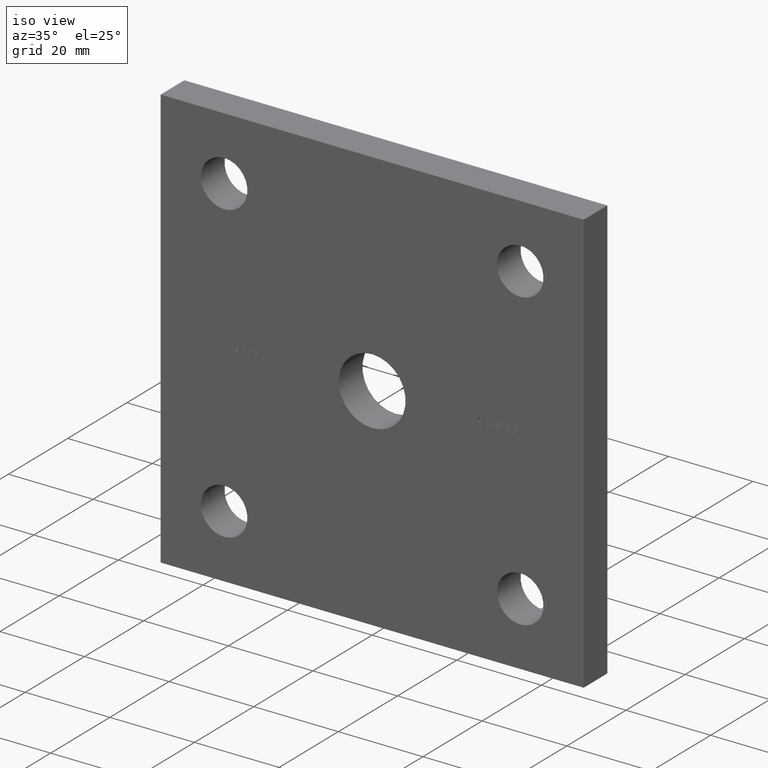
[diagram: clean part render]
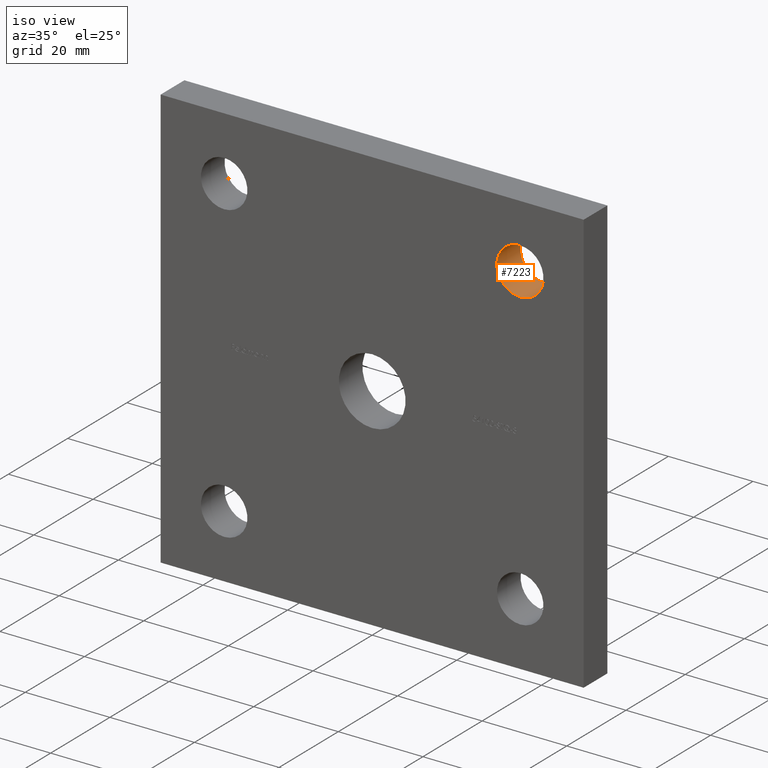
[diagram: same view with one face highlighted and labeled with its STEP entity id]
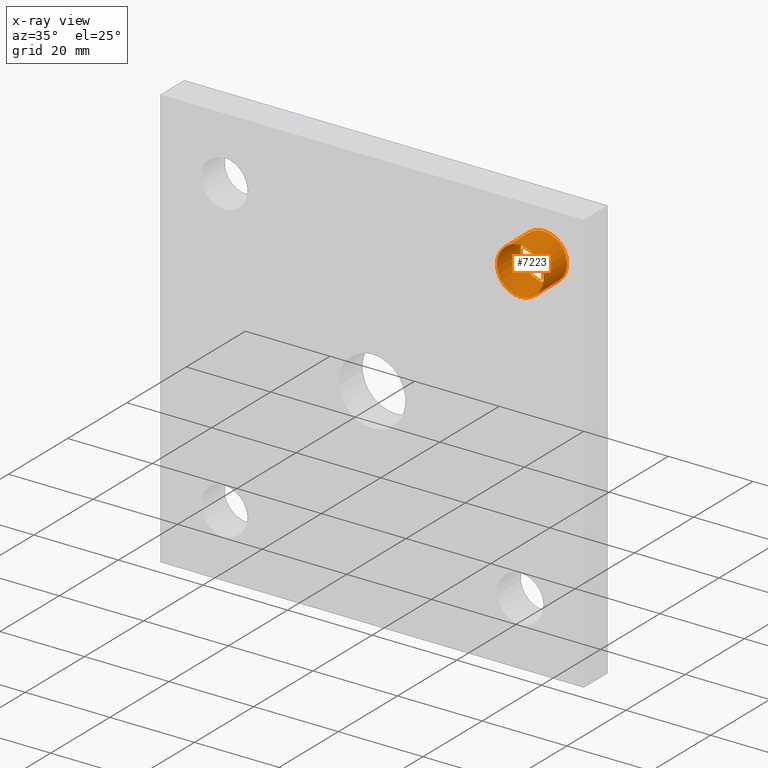
[diagram: x-ray of the same camera — body ghosted, the highlighted face saturated]
A machine part, iso view. The second image highlights one B-rep face of the part: STEP entity #7223.
The next image is the same camera in x-ray: the body ghosted, the highlighted face saturated — about 0% of this face is hidden behind the body in this view.
In plain terms, the highlighted cylindrical surface (bore or boss wall) has radius 5.5 mm, axis along (-0, 1, -0).
Its self-contained STEP definition (entity closure, byte-faithful):
#1149 = CYLINDRICAL_SURFACE ( 'NONE', #8152, 5.499999999999998224 ) ;
#1209 = AXIS2_PLACEMENT_3D ( 'NONE', #2086, #11871, #7601 ) ;
#1231 = VERTEX_POINT ( 'NONE', #3554 ) ;
#1702 = EDGE_CURVE ( 'NONE', #11584, #11584, #2666, .T. ) ;
#2086 = CARTESIAN_POINT ( 'NONE',  ( 35.00000000000000000, 0.000000000000000000, 35.00000000000000000 ) ) ;
#2666 = CIRCLE ( 'NONE', #12526, 5.499999999999998224 ) ;
#3504 = CIRCLE ( 'NONE', #1209, 5.499999999999998224 ) ;
#3554 = CARTESIAN_POINT ( 'NONE',  ( 35.00000000000000000, 0.000000000000000000, 40.50000000000000000 ) ) ;
#3816 = DIRECTION ( 'NONE',  ( -0.000000000000000000, 1.000000000000000000, -0.000000000000000000 ) ) ;
#4455 = EDGE_LOOP ( 'NONE', ( #12172 ) ) ;
#4483 = CARTESIAN_POINT ( 'NONE',  ( 35.00000000000000000, 8.000000000000000000, 35.00000000000000000 ) ) ;
#4601 = FACE_OUTER_BOUND ( 'NONE', #6397, .T. ) ;
#4995 = DIRECTION ( 'NONE',  ( 0.000000000000000000, 0.000000000000000000, 1.000000000000000000 ) ) ;
#6397 = EDGE_LOOP ( 'NONE', ( #7906 ) ) ;
#7053 = FACE_OUTER_BOUND ( 'NONE', #4455, .T. ) ;
#7223 = ADVANCED_FACE ( 'NONE', ( #4601, #7053 ), #1149, .F. ) ;
#7601 = DIRECTION ( 'NONE',  ( 0.000000000000000000, 0.000000000000000000, 1.000000000000000000 ) ) ;
#7906 = ORIENTED_EDGE ( 'NONE', *, *, #11193, .F. ) ;
#8151 = DIRECTION ( 'NONE',  ( 0.000000000000000000, 1.000000000000000000, 0.000000000000000000 ) ) ;
#8152 = AXIS2_PLACEMENT_3D ( 'NONE', #11688, #3816, #4995 ) ;
#10319 = CARTESIAN_POINT ( 'NONE',  ( 35.00000000000000000, 8.000000000000000000, 40.50000000000000000 ) ) ;
#11193 = EDGE_CURVE ( 'NONE', #1231, #1231, #3504, .T. ) ;
#11584 = VERTEX_POINT ( 'NONE', #10319 ) ;
#11688 = CARTESIAN_POINT ( 'NONE',  ( 35.00000000000000000, 0.000000000000000000, 35.00000000000000000 ) ) ;
#11871 = DIRECTION ( 'NONE',  ( 0.000000000000000000, 1.000000000000000000, 0.000000000000000000 ) ) ;
#12172 = ORIENTED_EDGE ( 'NONE', *, *, #1702, .T. ) ;
#12526 = AXIS2_PLACEMENT_3D ( 'NONE', #4483, #8151, #12585 ) ;
#12585 = DIRECTION ( 'NONE',  ( 0.000000000000000000, 0.000000000000000000, 1.000000000000000000 ) ) ;